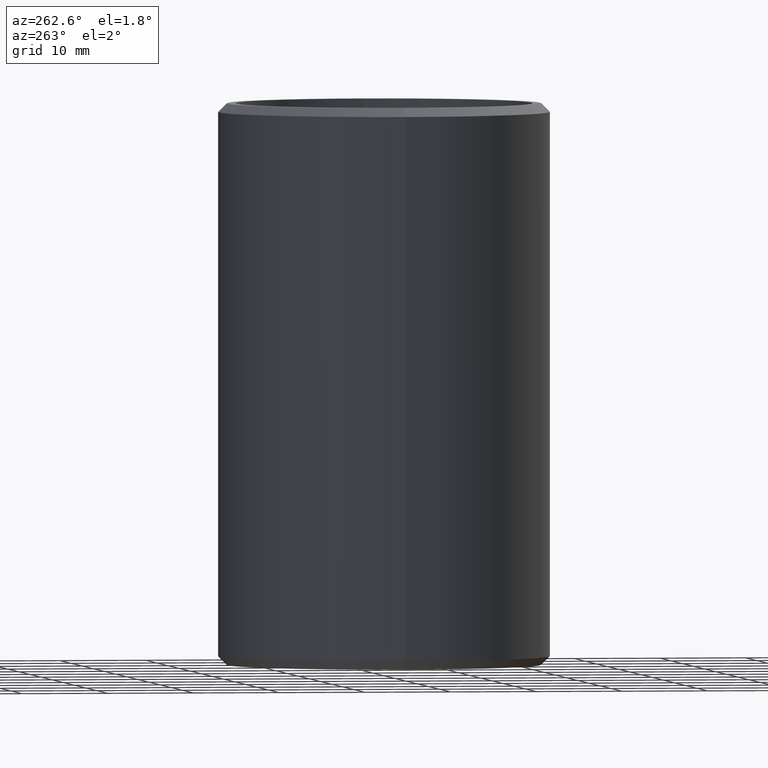
[diagram: clean part render]
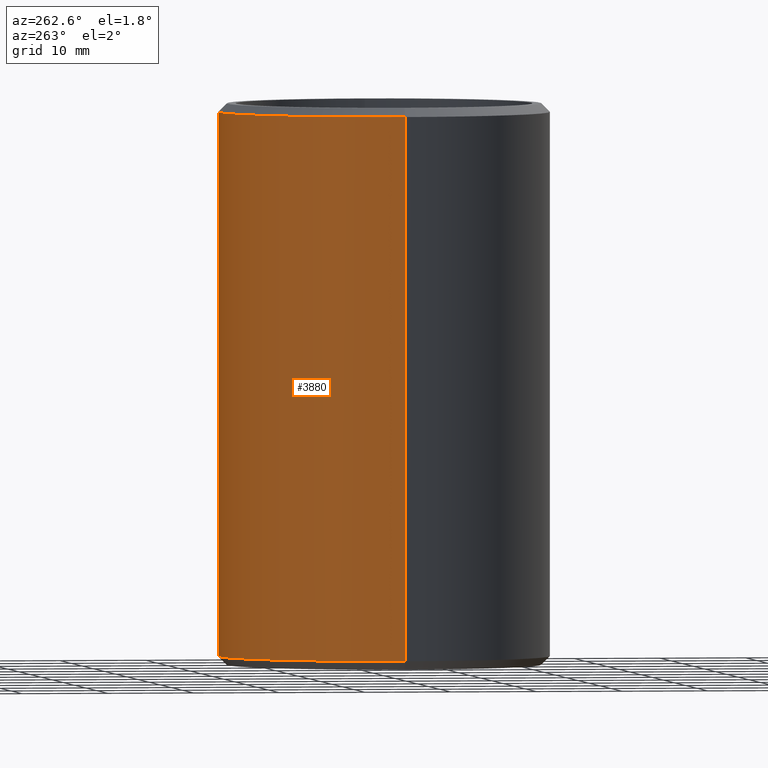
[diagram: same view with one face highlighted and labeled with its STEP entity id]
A machine part, auxiliary view. The second image highlights one B-rep face of the part: STEP entity #3880.
In plain terms, the highlighted cylindrical surface (partial cylindrical patch) has radius 19.2 mm, axis along (-0, -0, -1).
Its self-contained STEP definition (entity closure, byte-faithful):
#405 = AXIS2_PLACEMENT_3D ( 'NONE', #10872, #8991, #4656 ) ;
#487 = EDGE_LOOP ( 'NONE', ( #10913, #7066, #7996, #9020 ) ) ;
#533 = CARTESIAN_POINT ( 'NONE',  ( 19.19999999999999900, 2.351321854362917700E-015, 32.50000000000000000 ) ) ;
#935 = CARTESIAN_POINT ( 'NONE',  ( -19.19999999999999900, 0.0000000000000000000, -31.49999999999998600 ) ) ;
#1155 = DIRECTION ( 'NONE',  ( -0.0000000000000000000, -0.0000000000000000000, -1.000000000000000000 ) ) ;
#1459 = AXIS2_PLACEMENT_3D ( 'NONE', #11190, #5036, #1622 ) ;
#1622 = DIRECTION ( 'NONE',  ( 1.000000000000000000, 0.0000000000000000000, 0.0000000000000000000 ) ) ;
#1784 = LINE ( 'NONE', #533, #4689 ) ;
#1889 = EDGE_CURVE ( 'NONE', #2527, #5153, #10874, .T. ) ;
#1911 = CARTESIAN_POINT ( 'NONE',  ( -19.19999999999999900, 0.0000000000000000000, 32.50000000000000000 ) ) ;
#1954 = CARTESIAN_POINT ( 'NONE',  ( -19.19999999999999900, 0.0000000000000000000, 31.50000000000000000 ) ) ;
#2527 = VERTEX_POINT ( 'NONE', #1954 ) ;
#2684 = CYLINDRICAL_SURFACE ( 'NONE', #3698, 19.19999999999999900 ) ;
#2988 = DIRECTION ( 'NONE',  ( -0.0000000000000000000, -0.0000000000000000000, -1.000000000000000000 ) ) ;
#3352 = FACE_OUTER_BOUND ( 'NONE', #487, .T. ) ;
#3698 = AXIS2_PLACEMENT_3D ( 'NONE', #10941, #2988, #10899 ) ;
#3880 = ADVANCED_FACE ( 'NONE', ( #3352 ), #2684, .T. ) ;
#4656 = DIRECTION ( 'NONE',  ( 1.000000000000000000, 0.0000000000000000000, 0.0000000000000000000 ) ) ;
#4689 = VECTOR ( 'NONE', #10182, 1000.000000000000000 ) ;
#5036 = DIRECTION ( 'NONE',  ( 0.0000000000000000000, 0.0000000000000000000, -1.000000000000000000 ) ) ;
#5153 = VERTEX_POINT ( 'NONE', #10009 ) ;
#6187 = LINE ( 'NONE', #1911, #7006 ) ;
#6354 = CIRCLE ( 'NONE', #405, 19.19999999999999900 ) ;
#6405 = CARTESIAN_POINT ( 'NONE',  ( 19.19999999999999900, 2.351321854362917700E-015, -31.49999999999998600 ) ) ;
#7006 = VECTOR ( 'NONE', #1155, 1000.000000000000000 ) ;
#7066 = ORIENTED_EDGE ( 'NONE', *, *, #10312, .T. ) ;
#7996 = ORIENTED_EDGE ( 'NONE', *, *, #10071, .T. ) ;
#8406 = VERTEX_POINT ( 'NONE', #6405 ) ;
#8991 = DIRECTION ( 'NONE',  ( -0.0000000000000000000, -0.0000000000000000000, 1.000000000000000000 ) ) ;
#9020 = ORIENTED_EDGE ( 'NONE', *, *, #11120, .F. ) ;
#9399 = VERTEX_POINT ( 'NONE', #935 ) ;
#10009 = CARTESIAN_POINT ( 'NONE',  ( 19.19999999999999900, 2.351321854362917700E-015, 31.50000000000000000 ) ) ;
#10071 = EDGE_CURVE ( 'NONE', #8406, #9399, #6354, .T. ) ;
#10182 = DIRECTION ( 'NONE',  ( -0.0000000000000000000, -0.0000000000000000000, -1.000000000000000000 ) ) ;
#10312 = EDGE_CURVE ( 'NONE', #5153, #8406, #1784, .T. ) ;
#10872 = CARTESIAN_POINT ( 'NONE',  ( 0.0000000000000000000, 0.0000000000000000000, -31.49999999999998600 ) ) ;
#10874 = CIRCLE ( 'NONE', #1459, 19.19999999999999900 ) ;
#10899 = DIRECTION ( 'NONE',  ( -1.000000000000000000, 0.0000000000000000000, 0.0000000000000000000 ) ) ;
#10913 = ORIENTED_EDGE ( 'NONE', *, *, #1889, .T. ) ;
#10941 = CARTESIAN_POINT ( 'NONE',  ( 0.0000000000000000000, 0.0000000000000000000, 32.50000000000000000 ) ) ;
#11120 = EDGE_CURVE ( 'NONE', #2527, #9399, #6187, .T. ) ;
#11190 = CARTESIAN_POINT ( 'NONE',  ( 0.0000000000000000000, 0.0000000000000000000, 31.50000000000000000 ) ) ;